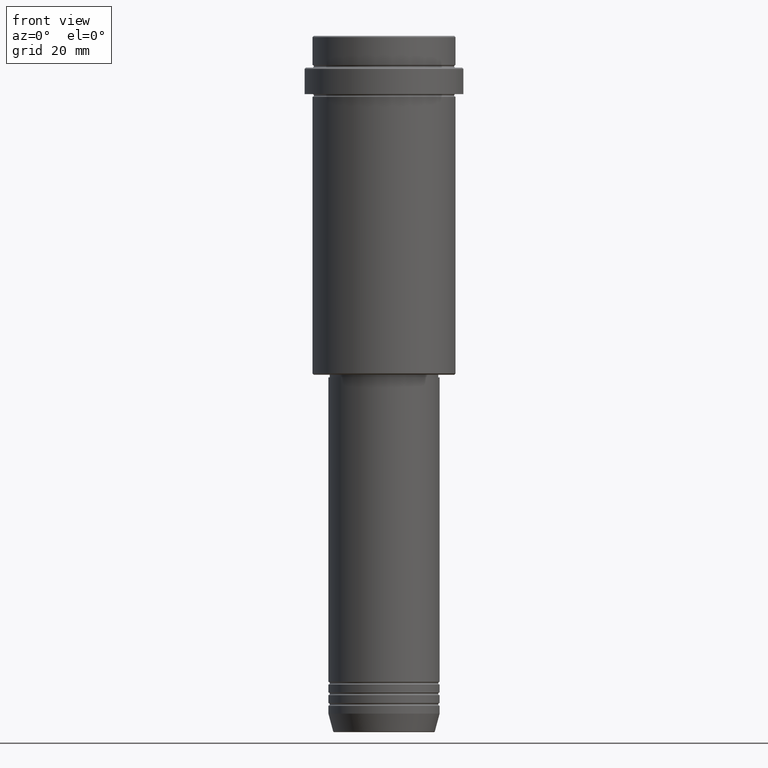
[diagram: clean part render]
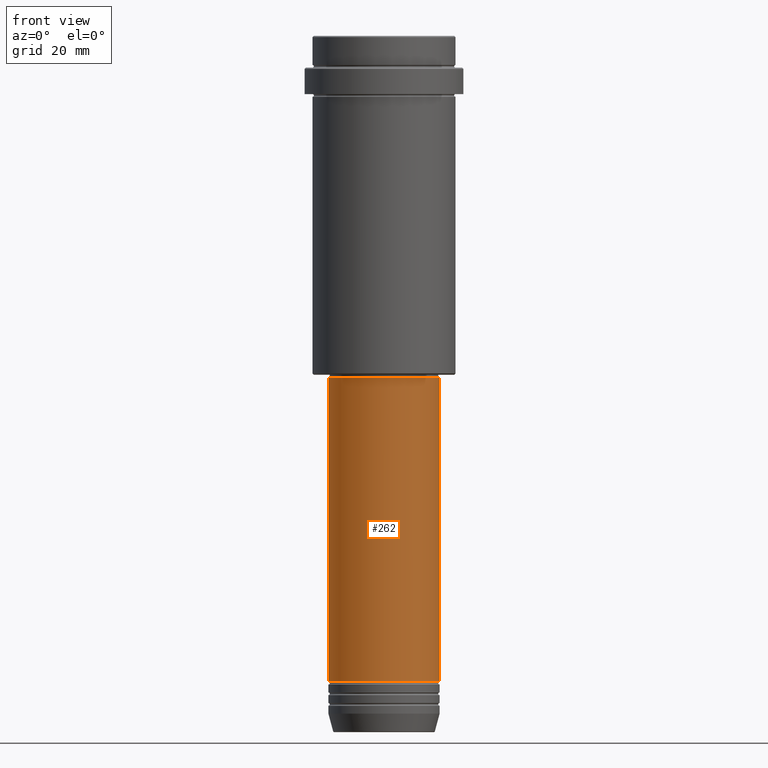
[diagram: same view with one face highlighted and labeled with its STEP entity id]
A machine part, front view. The second image highlights one B-rep face of the part: STEP entity #262.
In plain terms, the highlighted cylindrical surface (partial cylindrical patch) has radius 21 mm, axis along (-0, -0, 1).
Its self-contained STEP definition (entity closure, byte-faithful):
#3 = LINE ( 'NONE', #773, #413 ) ;
#21 = ORIENTED_EDGE ( 'NONE', *, *, #1178, .F. ) ;
#42 = CYLINDRICAL_SURFACE ( 'NONE', #1411, 20.99999999999999645 ) ;
#51 = VERTEX_POINT ( 'NONE', #945 ) ;
#71 = ORIENTED_EDGE ( 'NONE', *, *, #1376, .T. ) ;
#108 = ORIENTED_EDGE ( 'NONE', *, *, #854, .T. ) ;
#195 = LINE ( 'NONE', #280, #1010 ) ;
#262 = ADVANCED_FACE ( 'NONE', ( #373 ), #42, .T. ) ;
#280 = CARTESIAN_POINT ( 'NONE',  ( 20.99999999999999645, 0.000000000000000000, 0.000000000000000000 ) ) ;
#373 = FACE_OUTER_BOUND ( 'NONE', #832, .T. ) ;
#413 = VECTOR ( 'NONE', #1198, 1000.000000000000000 ) ;
#480 = DIRECTION ( 'NONE',  ( -0.000000000000000000, -0.000000000000000000, 1.000000000000000000 ) ) ;
#584 = DIRECTION ( 'NONE',  ( -0.000000000000000000, -0.000000000000000000, 1.000000000000000000 ) ) ;
#590 = CARTESIAN_POINT ( 'NONE',  ( 20.99999999999999645, 0.000000000000000000, -129.0000000000000000 ) ) ;
#594 = CIRCLE ( 'NONE', #777, 20.99999999999999645 ) ;
#699 = VERTEX_POINT ( 'NONE', #1082 ) ;
#714 = CARTESIAN_POINT ( 'NONE',  ( 0.000000000000000000, 0.000000000000000000, 0.000000000000000000 ) ) ;
#722 = EDGE_CURVE ( 'NONE', #699, #1260, #594, .T. ) ;
#734 = AXIS2_PLACEMENT_3D ( 'NONE', #1346, #802, #1229 ) ;
#773 = CARTESIAN_POINT ( 'NONE',  ( -20.99999999999999645, 2.571758278209441267E-15, 0.000000000000000000 ) ) ;
#777 = AXIS2_PLACEMENT_3D ( 'NONE', #1307, #584, #786 ) ;
#779 = VERTEX_POINT ( 'NONE', #1027 ) ;
#786 = DIRECTION ( 'NONE',  ( 1.000000000000000000, 0.000000000000000000, 0.000000000000000000 ) ) ;
#802 = DIRECTION ( 'NONE',  ( -0.000000000000000000, -0.000000000000000000, 1.000000000000000000 ) ) ;
#832 = EDGE_LOOP ( 'NONE', ( #21, #108, #71, #1239 ) ) ;
#854 = EDGE_CURVE ( 'NONE', #779, #51, #912, .T. ) ;
#912 = CIRCLE ( 'NONE', #734, 21.00000000000000000 ) ;
#918 = DIRECTION ( 'NONE',  ( 1.000000000000000000, 0.000000000000000000, 0.000000000000000000 ) ) ;
#945 = CARTESIAN_POINT ( 'NONE',  ( 21.00000000000000000, 0.000000000000000000, -243.9999999999998863 ) ) ;
#1010 = VECTOR ( 'NONE', #1173, 1000.000000000000000 ) ;
#1027 = CARTESIAN_POINT ( 'NONE',  ( -21.00000000000000000, 2.571758278209441661E-15, -243.9999999999998863 ) ) ;
#1082 = CARTESIAN_POINT ( 'NONE',  ( -20.99999999999999645, 2.571758278209441267E-15, -129.0000000000000000 ) ) ;
#1173 = DIRECTION ( 'NONE',  ( -0.000000000000000000, -0.000000000000000000, 1.000000000000000000 ) ) ;
#1178 = EDGE_CURVE ( 'NONE', #779, #699, #3, .T. ) ;
#1198 = DIRECTION ( 'NONE',  ( -0.000000000000000000, -0.000000000000000000, 1.000000000000000000 ) ) ;
#1229 = DIRECTION ( 'NONE',  ( 1.000000000000000000, 0.000000000000000000, 0.000000000000000000 ) ) ;
#1239 = ORIENTED_EDGE ( 'NONE', *, *, #722, .F. ) ;
#1260 = VERTEX_POINT ( 'NONE', #590 ) ;
#1307 = CARTESIAN_POINT ( 'NONE',  ( 0.000000000000000000, 0.000000000000000000, -129.0000000000000000 ) ) ;
#1346 = CARTESIAN_POINT ( 'NONE',  ( 0.000000000000000000, 0.000000000000000000, -243.9999999999998863 ) ) ;
#1376 = EDGE_CURVE ( 'NONE', #51, #1260, #195, .T. ) ;
#1411 = AXIS2_PLACEMENT_3D ( 'NONE', #714, #480, #918 ) ;